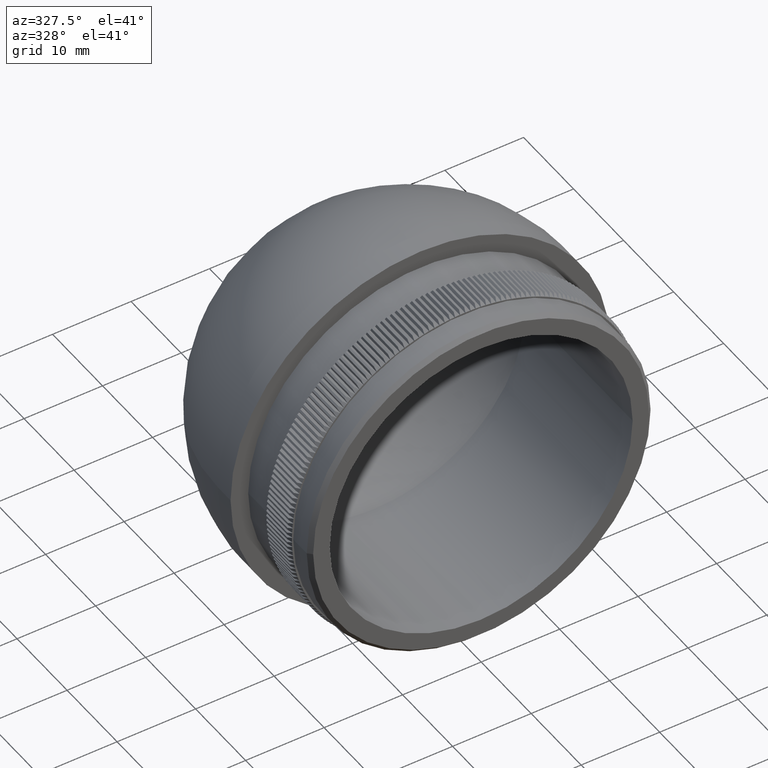
[diagram: clean part render]
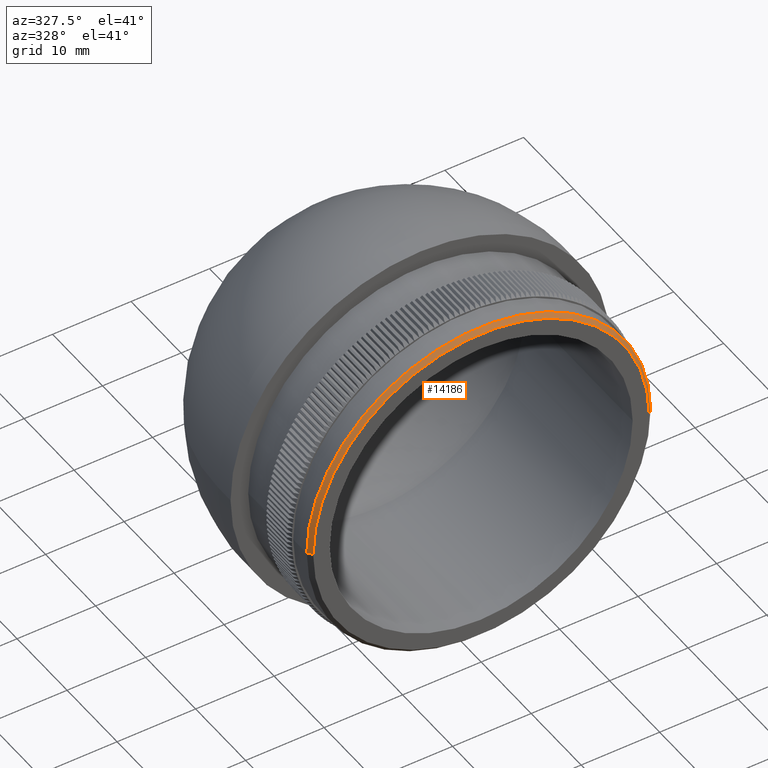
[diagram: same view with one face highlighted and labeled with its STEP entity id]
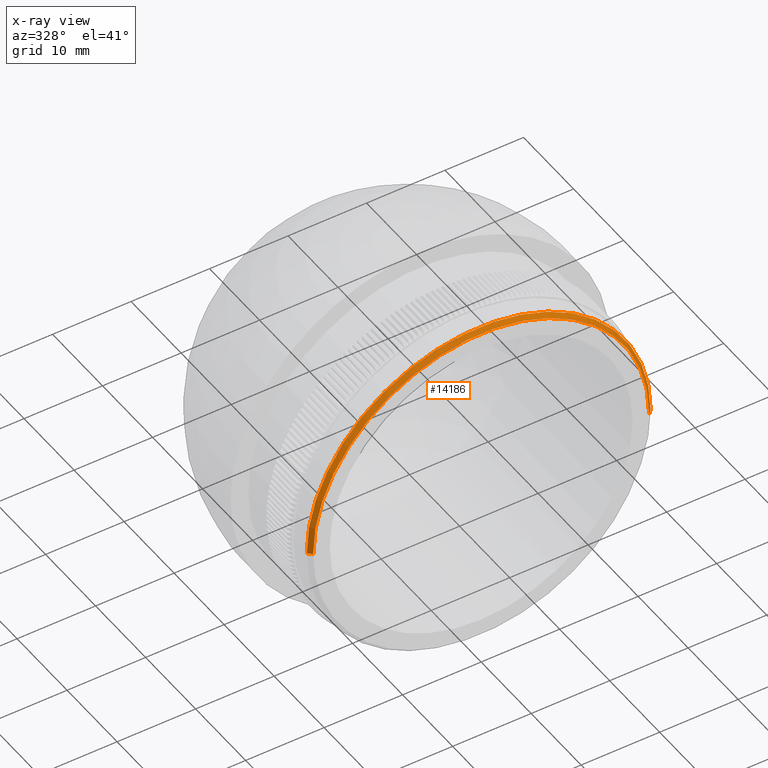
[diagram: x-ray of the same camera — body ghosted, the highlighted face saturated]
A machine part, auxiliary view. The second image highlights one B-rep face of the part: STEP entity #14186.
The next image is the same camera in x-ray: the body ghosted, the highlighted face saturated — about 0% of this face is hidden behind the body in this view.
In plain terms, the highlighted conical surface has half-angle 45 deg.
Its self-contained STEP definition (entity closure, byte-faithful):
#456 = DIRECTION ( 'NONE',  ( -1.000000000000000000, 1.388827867340709000E-015, 0.0000000000000000000 ) ) ;
#588 = VERTEX_POINT ( 'NONE', #11582 ) ;
#2663 = AXIS2_PLACEMENT_3D ( 'NONE', #15436, #26062, #456 ) ;
#3725 = DIRECTION ( 'NONE',  ( -1.388827867340707400E-015, -1.000000000000000000, -0.0000000000000000000 ) ) ;
#4465 = CIRCLE ( 'NONE', #27591, 21.40000000000004800 ) ;
#5027 = EDGE_CURVE ( 'NONE', #32276, #588, #31141, .T. ) ;
#10632 = CARTESIAN_POINT ( 'NONE',  ( 21.39999999999999900, -9.181804230068579100E-016, 2.651360320154025200E-015 ) ) ;
#11073 = CONICAL_SURFACE ( 'NONE', #2663, 21.40000000000004800, 0.7853981633974587200 ) ;
#11582 = CARTESIAN_POINT ( 'NONE',  ( -21.90000000000009500, 0.5000000000000447400, 2.681976490132709000E-015 ) ) ;
#12698 = ORIENTED_EDGE ( 'NONE', *, *, #38597, .T. ) ;
#13722 = CIRCLE ( 'NONE', #38534, 21.90000000000004500 ) ;
#14186 = ADVANCED_FACE ( 'NONE', ( #16505 ), #11073, .T. ) ;
#15436 = CARTESIAN_POINT ( 'NONE',  ( -4.881729953702580900E-014, 2.775557561562891400E-014, 0.0000000000000000000 ) ) ;
#15483 = DIRECTION ( 'NONE',  ( -0.7071067811865539000, 0.7071067811865411300, 0.0000000000000000000 ) ) ;
#15963 = CARTESIAN_POINT ( 'NONE',  ( -4.881729953702580900E-014, 2.880273593808434700E-014, 0.0000000000000000000 ) ) ;
#16505 = FACE_OUTER_BOUND ( 'NONE', #27047, .T. ) ;
#18318 = VECTOR ( 'NONE', #15483, 1000.000000000000000 ) ;
#18582 = EDGE_CURVE ( 'NONE', #36699, #32276, #4465, .T. ) ;
#19924 = CARTESIAN_POINT ( 'NONE',  ( 21.89999999999999500, 0.4999999999999838500, 0.0000000000000000000 ) ) ;
#23109 = EDGE_CURVE ( 'NONE', #588, #37928, #13722, .T. ) ;
#24117 = DIRECTION ( 'NONE',  ( 1.388827867340708600E-015, 1.000000000000000000, 0.0000000000000000000 ) ) ;
#26010 = ORIENTED_EDGE ( 'NONE', *, *, #18582, .F. ) ;
#26062 = DIRECTION ( 'NONE',  ( 1.388827867340708600E-015, 1.000000000000000000, 0.0000000000000000000 ) ) ;
#26509 = VECTOR ( 'NONE', #30879, 999.9999999999998900 ) ;
#27047 = EDGE_LOOP ( 'NONE', ( #26010, #12698, #34645, #40841 ) ) ;
#27149 = DIRECTION ( 'NONE',  ( 1.000000000000000000, -1.391145253280484600E-015, 0.0000000000000000000 ) ) ;
#27591 = AXIS2_PLACEMENT_3D ( 'NONE', #15963, #3725, #28805 ) ;
#28805 = DIRECTION ( 'NONE',  ( 1.000000000000000000, -1.388827867340707200E-015, 0.0000000000000000000 ) ) ;
#30879 = DIRECTION ( 'NONE',  ( 0.7071067811865559000, 0.7071067811865392500, 8.659560562355024100E-017 ) ) ;
#31141 = LINE ( 'NONE', #34382, #18318 ) ;
#31441 = LINE ( 'NONE', #34501, #26509 ) ;
#32276 = VERTEX_POINT ( 'NONE', #38374 ) ;
#34382 = CARTESIAN_POINT ( 'NONE',  ( -21.40000000000009500, 5.747649197672015800E-014, 0.0000000000000000000 ) ) ;
#34501 = CARTESIAN_POINT ( 'NONE',  ( 21.39999999999999900, -1.965340745462319000E-015, 2.620744150175341800E-015 ) ) ;
#34645 = ORIENTED_EDGE ( 'NONE', *, *, #23109, .F. ) ;
#36699 = VERTEX_POINT ( 'NONE', #10632 ) ;
#37928 = VERTEX_POINT ( 'NONE', #19924 ) ;
#38374 = CARTESIAN_POINT ( 'NONE',  ( -21.40000000000009500, 5.852365229917554700E-014, 0.0000000000000000000 ) ) ;
#38534 = AXIS2_PLACEMENT_3D ( 'NONE', #39686, #24117, #27149 ) ;
#38597 = EDGE_CURVE ( 'NONE', #36699, #37928, #31441, .T. ) ;
#39686 = CARTESIAN_POINT ( 'NONE',  ( -4.812288560335547200E-014, 0.5000000000000143200, 0.0000000000000000000 ) ) ;
#40841 = ORIENTED_EDGE ( 'NONE', *, *, #5027, .F. ) ;